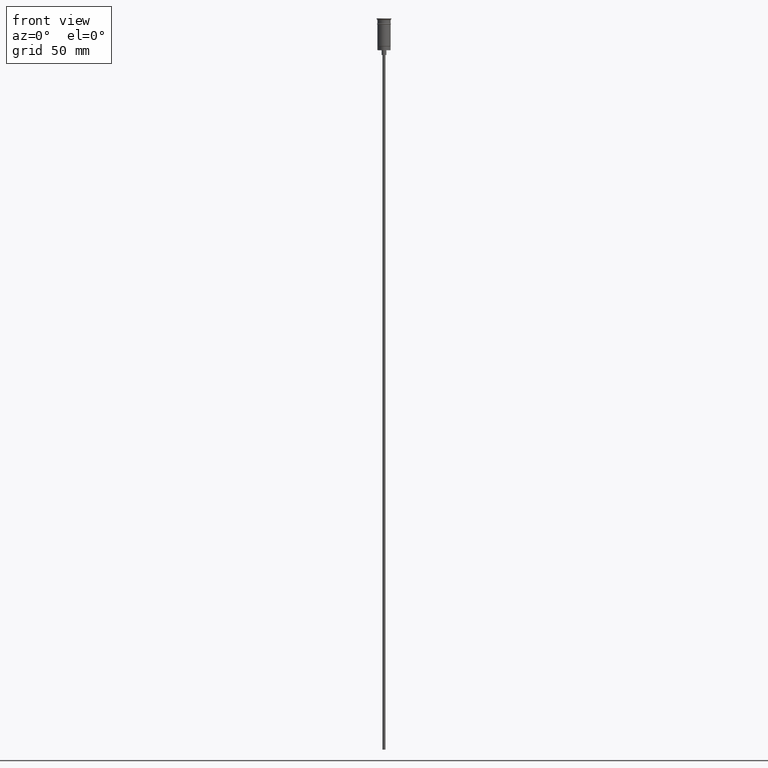
[diagram: clean part render]
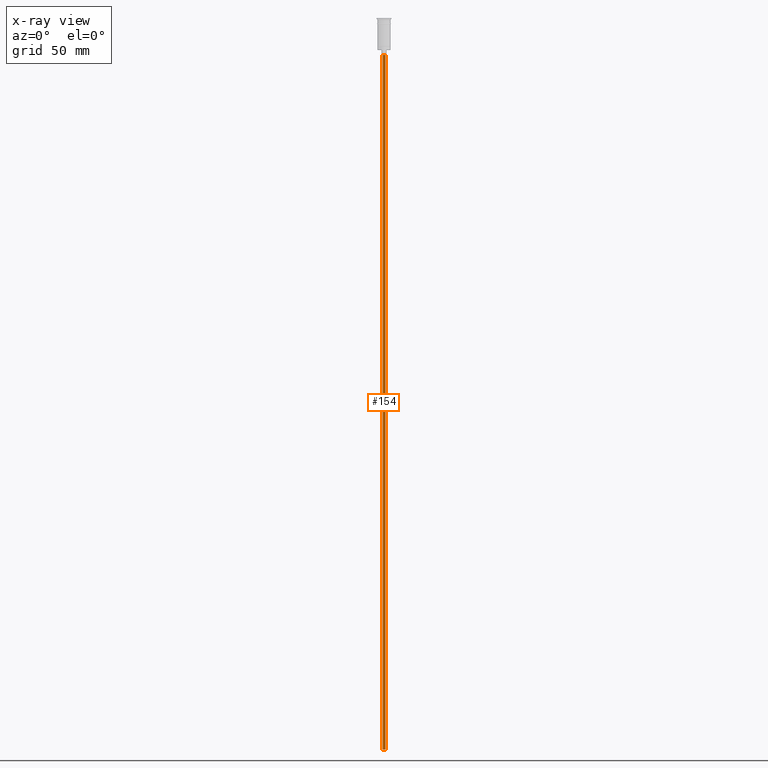
[diagram: x-ray — body ghosted, one internal face saturated and labeled with its STEP entity id]
A machine part, front view, then the same camera in x-ray: the body is ghosted and one INTERNAL B-rep face — a face not visible from any outside direction — is saturated and labeled: STEP entity #154.
In plain terms, the highlighted cylindrical surface (edge-blend (fillet) strip) has radius 1 mm, axis along (-0, -0, 1).
Its self-contained STEP definition (entity closure, byte-faithful):
#31 = VERTEX_POINT ( 'NONE', #900 ) ;
#61 = AXIS2_PLACEMENT_3D ( 'NONE', #1351, #1215, #106 ) ;
#69 = CARTESIAN_POINT ( 'NONE',  ( -0.9999999999999997780, 1.224646799147352961E-16, -470.5000000000000568 ) ) ;
#85 = ORIENTED_EDGE ( 'NONE', *, *, #370, .T. ) ;
#106 = DIRECTION ( 'NONE',  ( 1.000000000000000000, 0.000000000000000000, 0.000000000000000000 ) ) ;
#114 = VECTOR ( 'NONE', #505, 1000.000000000000000 ) ;
#154 = ADVANCED_FACE ( 'NONE', ( #229 ), #220, .T. ) ;
#175 = DIRECTION ( 'NONE',  ( 0.000000000000000000, 0.000000000000000000, -1.000000000000000000 ) ) ;
#220 = CYLINDRICAL_SURFACE ( 'NONE', #61, 0.9999999999999997780 ) ;
#229 = FACE_OUTER_BOUND ( 'NONE', #1582, .T. ) ;
#247 = AXIS2_PLACEMENT_3D ( 'NONE', #524, #1509, #1443 ) ;
#250 = EDGE_CURVE ( 'NONE', #1484, #31, #515, .T. ) ;
#370 = EDGE_CURVE ( 'NONE', #31, #468, #662, .T. ) ;
#415 = DIRECTION ( 'NONE',  ( -0.000000000000000000, -0.000000000000000000, 1.000000000000000000 ) ) ;
#424 = ORIENTED_EDGE ( 'NONE', *, *, #1363, .F. ) ;
#468 = VERTEX_POINT ( 'NONE', #898 ) ;
#498 = EDGE_CURVE ( 'NONE', #1490, #468, #1530, .T. ) ;
#505 = DIRECTION ( 'NONE',  ( -0.000000000000000000, -0.000000000000000000, 1.000000000000000000 ) ) ;
#515 = LINE ( 'NONE', #998, #114 ) ;
#524 = CARTESIAN_POINT ( 'NONE',  ( 0.000000000000000000, 0.000000000000000000, -470.5000000000000568 ) ) ;
#548 = ORIENTED_EDGE ( 'NONE', *, *, #250, .T. ) ;
#554 = CARTESIAN_POINT ( 'NONE',  ( 0.000000000000000000, 0.000000000000000000, -23.49999999999999645 ) ) ;
#662 = CIRCLE ( 'NONE', #1538, 0.9999999999999997780 ) ;
#685 = ORIENTED_EDGE ( 'NONE', *, *, #498, .F. ) ;
#898 = CARTESIAN_POINT ( 'NONE',  ( 0.9999999999999997780, 0.000000000000000000, -23.49999999999999645 ) ) ;
#900 = CARTESIAN_POINT ( 'NONE',  ( -0.9999999999999997780, 1.224646799147352961E-16, -23.49999999999999645 ) ) ;
#998 = CARTESIAN_POINT ( 'NONE',  ( -0.9999999999999997780, 1.224646799147352961E-16, -470.5000000000000568 ) ) ;
#1062 = CARTESIAN_POINT ( 'NONE',  ( 0.9999999999999997780, 0.000000000000000000, -470.5000000000000568 ) ) ;
#1215 = DIRECTION ( 'NONE',  ( -0.000000000000000000, -0.000000000000000000, 1.000000000000000000 ) ) ;
#1351 = CARTESIAN_POINT ( 'NONE',  ( 0.000000000000000000, 0.000000000000000000, -470.5000000000000568 ) ) ;
#1363 = EDGE_CURVE ( 'NONE', #1484, #1490, #1595, .T. ) ;
#1443 = DIRECTION ( 'NONE',  ( -1.000000000000000000, 0.000000000000000000, 0.000000000000000000 ) ) ;
#1484 = VERTEX_POINT ( 'NONE', #69 ) ;
#1490 = VERTEX_POINT ( 'NONE', #1062 ) ;
#1509 = DIRECTION ( 'NONE',  ( 0.000000000000000000, 0.000000000000000000, -1.000000000000000000 ) ) ;
#1511 = VECTOR ( 'NONE', #415, 1000.000000000000000 ) ;
#1530 = LINE ( 'NONE', #1537, #1511 ) ;
#1537 = CARTESIAN_POINT ( 'NONE',  ( 0.9999999999999997780, 0.000000000000000000, -470.5000000000000568 ) ) ;
#1538 = AXIS2_PLACEMENT_3D ( 'NONE', #554, #175, #1549 ) ;
#1549 = DIRECTION ( 'NONE',  ( -1.000000000000000000, 0.000000000000000000, 0.000000000000000000 ) ) ;
#1582 = EDGE_LOOP ( 'NONE', ( #424, #548, #85, #685 ) ) ;
#1595 = CIRCLE ( 'NONE', #247, 0.9999999999999997780 ) ;